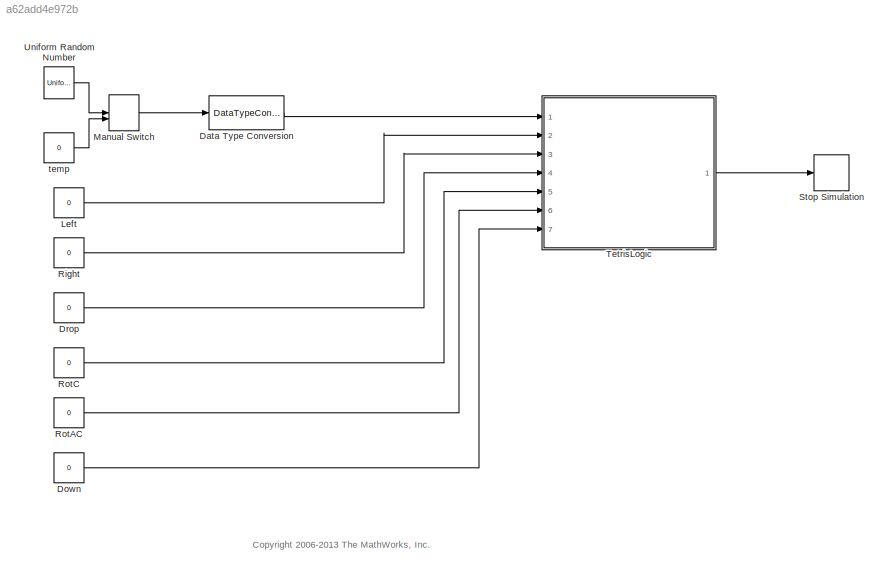
MODEL slx_a62add4e972b
KIND model
CONFIG AbsTol = auto
CONFIG EnableMultiTasking = on
CONFIG FixedStep = 1
CONFIG MaxStep = auto
CONFIG MinStep = auto
CONFIG RelTol = 1e-3
CONFIG SampleTimeConstraint = Unconstrained
CONFIG Solver = FixedStepDiscrete
CONFIG SolverName = FixedStepDiscrete
CONFIG StartTime = 0.0
CONFIG StopTime = inf
BLOCK [DataTypeConversion] Data Type Conversion
  RndMeth = Floor
  SaturateOnIntegerOverflow = off
BLOCK [Constant] Down
  Value = 0
BLOCK [Constant] Drop
  Value = 0
BLOCK [Constant] Left
  OutDataTypeStr = double
  Value = 0
BLOCK [ManualSwitch] Manual Switch
BLOCK [Constant] Right
  Value = 0
BLOCK [Constant] RotAC
  Value = 0
BLOCK [Constant] RotC
  Value = 0
BLOCK [Stop] Stop Simulation
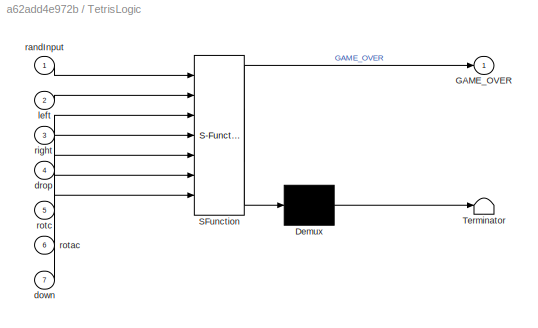
BLOCK [SubSystem] TetrisLogic
  ErrorFcn = Stateflow.Translate.translate
  PermitHierarchicalResolution = ExplicitOnly
  Ports = [7, 1]
  RequestExecContextInheritance = off
  SFBlockType = Chart
  TreatAsAtomicUnit = on
  Variant = off
BLOCK [Demux] TetrisLogic/ Demux 
  Outputs = 1
  Ports = [1, 1]
BLOCK [S-Function] TetrisLogic/ SFunction 
  EnableBusSupport = off
  FunctionName = sf_sfun
  PortCounts = [7 2]
  Ports = [7, 2]
  SFcnIsStateOwnerBlock = off
  SFunctionDeploymentMode = off
  Tag = Stateflow S-Function sf_tetris2 1
BLOCK [Terminator] TetrisLogic/ Terminator 
BLOCK [Outport] TetrisLogic/GAME_OVER
  IconDisplay = Port number
BLOCK [Inport] TetrisLogic/down
  IconDisplay = Port number
  Port = 7
BLOCK [Inport] TetrisLogic/drop
  IconDisplay = Port number
  Port = 4
BLOCK [Inport] TetrisLogic/left
  IconDisplay = Port number
  Port = 2
BLOCK [Inport] TetrisLogic/randInput
  IconDisplay = Port number
BLOCK [Inport] TetrisLogic/right
  IconDisplay = Port number
  Port = 3
BLOCK [Inport] TetrisLogic/rotac
  IconDisplay = Port number
  Port = 6
BLOCK [Inport] TetrisLogic/rotc
  IconDisplay = Port number
  Port = 5
BLOCK [UniformRandomNumber] Uniform Random Number
  Maximum = 7
  Minimum = 0
  SampleTime = 0
  Seed = 20
BLOCK [Constant] temp
  Value = 0
ANNOTATION (root): <copyright redacted>
LINE Data Type Conversion:1 -> TetrisLogic:1
LINE Down:1 -> TetrisLogic:7
LINE Drop:1 -> TetrisLogic:4
LINE Left:1 -> TetrisLogic:2
LINE Manual Switch:1 -> Data Type Conversion:1
LINE Right:1 -> TetrisLogic:3
LINE RotAC:1 -> TetrisLogic:6
LINE RotC:1 -> TetrisLogic:5
LINE TetrisLogic:1 -> Stop Simulation:1
LINE Uniform Random Number:1 -> Manual Switch:1
LINE temp:1 -> Manual Switch:2
CHART TetrisLogic states=38 transitions=97
  STATE_LABEL 'MainArea'
  STATE_LABEL 'move(dx, dy)'
  STATE_LABEL '[!isTouching(px+dx,py+dy)]\n{\npx += dx;\npy += dy;\n}'
  STATE_LABEL 'NewShape\nen:\nshape = WaitingArea.shape;\npy = ARENA_HEIGHT;\npx = ARENA_WIDTH/2 + 1;\nsend(WaitingArea.NEW);'
  STATE_LABEL 'Moving'
  STATE_LABEL 'MoveSlowly'
  STATE_LABEL 'DOWN'
  STATE_LABEL 'Down\nen:\nmove(0,-1);'
  STATE_LABEL 'Idle\nen: counter = 0;\ndu: counter++;'
  STATE_LABEL '[after(15-3*level+3,tick)]'
  STATE_LABEL 'RIGHT'
  STATE_LABEL '[hasChanged(right)]{move(1,0);}'
  STATE_LABEL 'LEFT'
  STATE_LABEL '[hasChanged(left)]{move(-1,0);}'
  STATE_LABEL 'DOWN_USER'
  STATE_LABEL '[hasChanged(down)]{move(0,-1);}'
  STATE_LABEL 'ROTAC'
  STATE_LABEL '[hasChanged(rotac)]{shape = rotateAC(shape);}'
  STATE_LABEL '[isTouching(px,py)]{shape = rotateC(shape);}'
  STATE_LABEL 'ROTC'
  STATE_LABEL '[hasChanged(rotc)]{shape = rotateC(shape);}'
  STATE_LABEL '[isTouching(px,py)]{shape = rotateAC(shape);}'
  STATE_LABEL 'MoveFast'
  STATE_LABEL '{\nmove(0,-1);\ndropHeight++;\n}'
  STATE_LABEL '{dropHeight=0;}'
  STATE_LABEL '[hasChanged(drop)]'
  STATE_LABEL 'initArena'
  STATE_LABEL 'Make the "walls" for the arena'
  STATE_LABEL '{arena = 0;\ni = 0;}'
  STATE_LABEL '[i < ARENA_HEIGHT+1]'
  STATE_LABEL '{i++;}'
  STATE_LABEL '{\narena[i][0] = 1;\narena[i][ARENA_WIDTH+1] = 1;\n}'
  STATE_LABEL '{i = 0;}'
  STATE_LABEL '[i < ARENA_WIDTH+2]'
  STATE_LABEL '{i++;}'
  STATE_LABEL '{\narena[0][i] = 1;\n}'
  STATE_LABEL 'NextLevel'
  STATE_LABEL '[level < 6]\n{level++;}'
  STATE_LABEL '[totalRowsCleared >= 10]\n{\ntotalRowsCleared = 0;\nscore += 1000*level;\ninitArena();\n}'
  STATE_LABEL 'ist = isTouching(x,y)'
